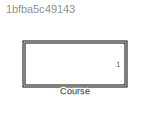
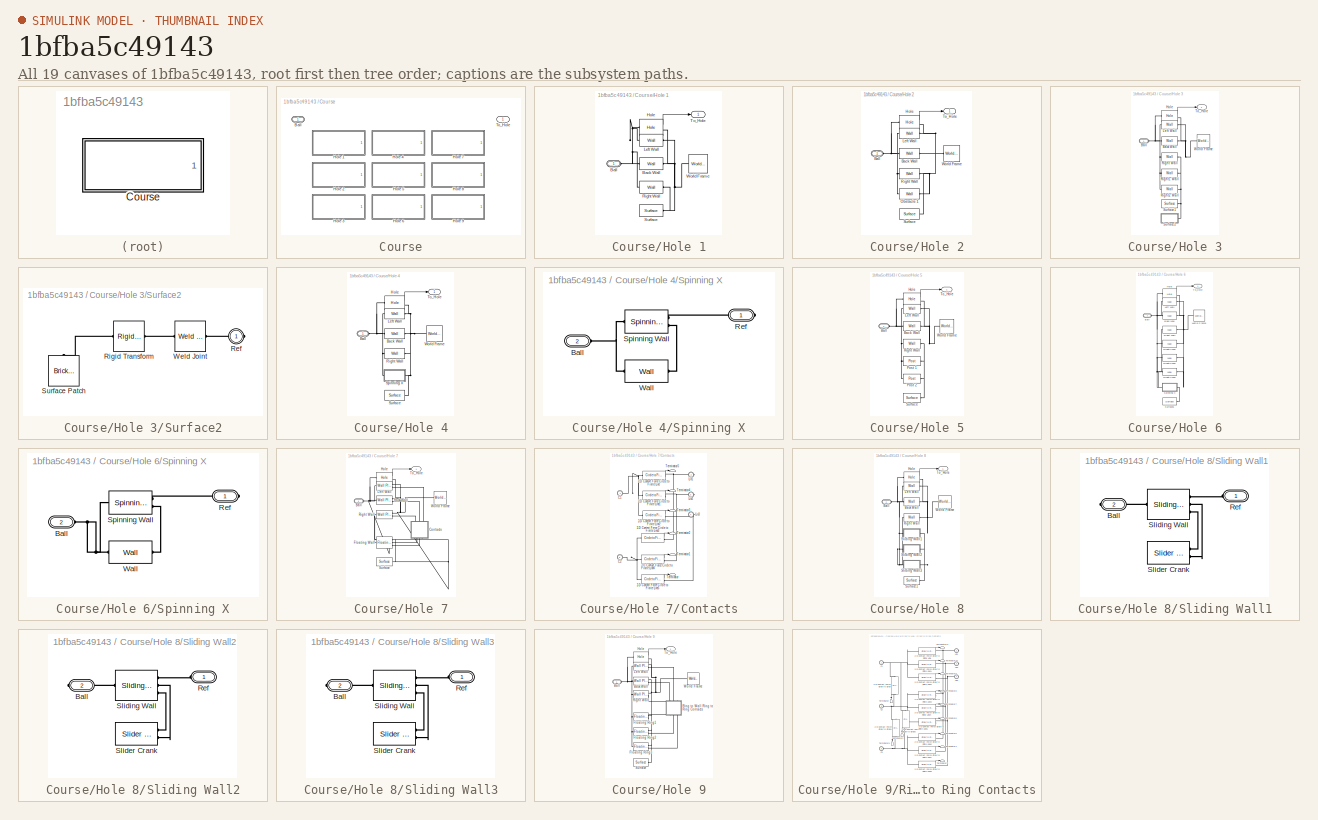
[diagram: thumbnail index - all 19 canvases of the model, root first then tree order]
MODEL slx_1bfba5c49143
KIND library
CONFIG AbsTol = auto
CONFIG EnableMultiTasking = on
CONFIG FixedStep = auto
CONFIG MaxStep = auto
CONFIG MinStep = auto
CONFIG RelTol = 1e-3
CONFIG SampleTimeConstraint = Unconstrained
CONFIG SolverName = ode45
CONFIG StartTime = 0.0
CONFIG StopTime = 10.0
BLOCK [SubSystem] Course
  LabelModeActiveChoice = Hole_1
  Ports = [0, 1, 0, 0, 0, 1]
  RequestExecContextInheritance = off
  Variant = on
  VariantControlMode = label
BLOCK [PMIOPort] Course/Ball
  Side = Left
BLOCK [SubSystem] Course/Hole 1
  Ports = [0, 1, 0, 0, 0, 1]
  RequestExecContextInheritance = off
  VariantControl = Hole_1
BLOCK [Reference] Course/Hole 1/Back Wall  REF=Golf_Components_Lib/Wall
  Ports = [0, 0, 0, 0, 0, 1, 1]
  SourceBlock = Golf_Components_Lib/Wall
  SourceType = Wall with Round Ends, 2D Contacts
BLOCK [PMIOPort] Course/Hole 1/Ball
  Side = Left
BLOCK [Reference] Course/Hole 1/Hole  REF=Golf_Components_Lib/Hole
  Ports = [0, 1, 0, 0, 0, 1, 1]
  SourceBlock = Golf_Components_Lib/Hole
  SourceType = Golf Course Hole, with Attractor Force
BLOCK [Reference] Course/Hole 1/Left Wall  REF=Golf_Components_Lib/Wall
  Ports = [0, 0, 0, 0, 0, 1, 1]
  SourceBlock = Golf_Components_Lib/Wall
  SourceType = Wall with Round Ends, 2D Contacts
BLOCK [Reference] Course/Hole 1/Right Wall  REF=Golf_Components_Lib/Wall
  Ports = [0, 0, 0, 0, 0, 1, 1]
  SourceBlock = Golf_Components_Lib/Wall
  SourceType = Wall with Round Ends, 2D Contacts
BLOCK [Reference] Course/Hole 1/Surface  REF=Golf_Components_Lib/Surface
  Ports = [0, 0, 0, 0, 0, 0, 1]
  SourceBlock = Golf_Components_Lib/Surface
  SourceType = Square Surface Patch for Golf Course
BLOCK [Outport] Course/Hole 1/To_Hole
  VectorParamsAs1DForOutWhenUnconnected = off
BLOCK [Reference] Course/Hole 1/World Frame  REF=sm_lib/Frames and
Transforms/World Frame
  Ports = [0, 0, 0, 0, 0, 0, 1]
  SourceBlock = sm_lib/Frames and\nTransforms/World Frame
  SourceProductBaseCode = MS
  SourceType = World Frame
BLOCK [SubSystem] Course/Hole 2
  Ports = [0, 1, 0, 0, 0, 1]
  RequestExecContextInheritance = off
  VariantControl = Hole_2
BLOCK [Reference] Course/Hole 2/Back Wall  REF=Golf_Components_Lib/Wall
  Ports = [0, 0, 0, 0, 0, 1, 1]
  SourceBlock = Golf_Components_Lib/Wall
  SourceType = Wall with Round Ends, 2D Contacts
BLOCK [PMIOPort] Course/Hole 2/Ball
  Side = Left
BLOCK [Reference] Course/Hole 2/Hole  REF=Golf_Components_Lib/Hole
  Ports = [0, 1, 0, 0, 0, 1, 1]
  SourceBlock = Golf_Components_Lib/Hole
  SourceType = Golf Course Hole, with Attractor Force
BLOCK [Reference] Course/Hole 2/Left Wall  REF=Golf_Components_Lib/Wall
  Ports = [0, 0, 0, 0, 0, 1, 1]
  SourceBlock = Golf_Components_Lib/Wall
  SourceType = Wall with Round Ends, 2D Contacts
BLOCK [Reference] Course/Hole 2/Obstacle 1  REF=Golf_Components_Lib/Wall
  Ports = [0, 0, 0, 0, 0, 1, 1]
  SourceBlock = Golf_Components_Lib/Wall
  SourceType = Wall with Round Ends, 2D Contacts
BLOCK [Reference] Course/Hole 2/Right Wall  REF=Golf_Components_Lib/Wall
  Ports = [0, 0, 0, 0, 0, 1, 1]
  SourceBlock = Golf_Components_Lib/Wall
  SourceType = Wall with Round Ends, 2D Contacts
BLOCK [Reference] Course/Hole 2/Surface  REF=Golf_Components_Lib/Surface
  Ports = [0, 0, 0, 0, 0, 0, 1]
  SourceBlock = Golf_Components_Lib/Surface
  SourceType = Square Surface Patch for Golf Course
BLOCK [Outport] Course/Hole 2/To_Hole
  VectorParamsAs1DForOutWhenUnconnected = off
BLOCK [Reference] Course/Hole 2/World Frame  REF=sm_lib/Frames and
Transforms/World Frame
  Ports = [0, 0, 0, 0, 0, 0, 1]
  SourceBlock = sm_lib/Frames and\nTransforms/World Frame
  SourceProductBaseCode = MS
  SourceType = World Frame
BLOCK [SubSystem] Course/Hole 3
  Ports = [0, 1, 0, 0, 0, 1]
  RequestExecContextInheritance = off
  VariantControl = Hole_3
BLOCK [Reference] Course/Hole 3/Back Wall  REF=Golf_Components_Lib/Wall
  Ports = [0, 0, 0, 0, 0, 1, 1]
  SourceBlock = Golf_Components_Lib/Wall
  SourceType = Wall with Round Ends, 2D Contacts
BLOCK [PMIOPort] Course/Hole 3/Ball
  Side = Left
BLOCK [Reference] Course/Hole 3/Hole  REF=Golf_Components_Lib/Hole
  Ports = [0, 1, 0, 0, 0, 1, 1]
  SourceBlock = Golf_Components_Lib/Hole
  SourceType = Golf Course Hole, with Attractor Force
BLOCK [Reference] Course/Hole 3/Left Wall  REF=Golf_Components_Lib/Wall
  Ports = [0, 0, 0, 0, 0, 1, 1]
  SourceBlock = Golf_Components_Lib/Wall
  SourceType = Wall with Round Ends, 2D Contacts
BLOCK [Reference] Course/Hole 3/Right Wall  REF=Golf_Components_Lib/Wall
  Ports = [0, 0, 0, 0, 0, 1, 1]
  SourceBlock = Golf_Components_Lib/Wall
  SourceType = Wall with Round Ends, 2D Contacts
BLOCK [Reference] Course/Hole 3/Right1 Wall  REF=Golf_Components_Lib/Wall
  Ports = [0, 0, 0, 0, 0, 1, 1]
  SourceBlock = Golf_Components_Lib/Wall
  SourceType = Wall with Round Ends, 2D Contacts
BLOCK [Reference] Course/Hole 3/Right2 Wall  REF=Golf_Components_Lib/Wall
  Ports = [0, 0, 0, 0, 0, 1, 1]
  SourceBlock = Golf_Components_Lib/Wall
  SourceType = Wall with Round Ends, 2D Contacts
BLOCK [Reference] Course/Hole 3/Surface1  REF=Golf_Components_Lib/Surface
  Ports = [0, 0, 0, 0, 0, 0, 1]
  SourceBlock = Golf_Components_Lib/Surface
  SourceType = Square Surface Patch for Golf Course
BLOCK [SubSystem] Course/Hole 3/Surface2
  Ports = [0, 0, 0, 0, 0, 0, 1]
  RequestExecContextInheritance = off
BLOCK [PMIOPort] Course/Hole 3/Surface2/Ref
  Side = Right
BLOCK [Reference] Course/Hole 3/Surface2/Rigid Transform  REF=sm_lib/Frames and
Transforms/Rigid
Transform
  Ports = [0, 0, 0, 0, 0, 1, 1]
  SourceBlock = sm_lib/Frames and\nTransforms/Rigid\nTransform
  SourceProductBaseCode = MS
  SourceType = Rigid\nTransform
BLOCK [Reference] Course/Hole 3/Surface2/Surface Patch  REF=sm_lib/Body Elements/Brick Solid
  NameLocation = right
  Ports = [0, 0, 0, 0, 0, 0, 1]
  SourceBlock = sm_lib/Body Elements/Brick Solid
  SourceProductBaseCode = MS
  SourceType = Brick Solid
BLOCK [Reference] Course/Hole 3/Surface2/Weld Joint  REF=sm_lib/Joints/Weld Joint
  Ports = [0, 0, 0, 0, 0, 1, 1]
  SourceBlock = sm_lib/Joints/Weld Joint
  SourceProductBaseCode = MS
  SourceType = Weld Joint
BLOCK [Outport] Course/Hole 3/To_Hole
  VectorParamsAs1DForOutWhenUnconnected = off
BLOCK [Reference] Course/Hole 3/World Frame  REF=sm_lib/Frames and
Transforms/World Frame
  Ports = [0, 0, 0, 0, 0, 0, 1]
  SourceBlock = sm_lib/Frames and\nTransforms/World Frame
  SourceProductBaseCode = MS
  SourceType = World Frame
BLOCK [SubSystem] Course/Hole 4
  Ports = [0, 1, 0, 0, 0, 1]
  RequestExecContextInheritance = off
  VariantControl = Hole_4
BLOCK [Reference] Course/Hole 4/Back Wall  REF=Golf_Components_Lib/Wall
  Ports = [0, 0, 0, 0, 0, 1, 1]
  SourceBlock = Golf_Components_Lib/Wall
  SourceType = Wall with Round Ends, 2D Contacts
BLOCK [PMIOPort] Course/Hole 4/Ball
  Side = Left
BLOCK [Reference] Course/Hole 4/Hole  REF=Golf_Components_Lib/Hole
  Ports = [0, 1, 0, 0, 0, 1, 1]
  SourceBlock = Golf_Components_Lib/Hole
  SourceType = Golf Course Hole, with Attractor Force
BLOCK [Reference] Course/Hole 4/Left Wall  REF=Golf_Components_Lib/Wall
  Ports = [0, 0, 0, 0, 0, 1, 1]
  SourceBlock = Golf_Components_Lib/Wall
  SourceType = Wall with Round Ends, 2D Contacts
BLOCK [Reference] Course/Hole 4/Right Wall  REF=Golf_Components_Lib/Wall
  Ports = [0, 0, 0, 0, 0, 1, 1]
  SourceBlock = Golf_Components_Lib/Wall
  SourceType = Wall with Round Ends, 2D Contacts
BLOCK [SubSystem] Course/Hole 4/Spinning X
  Ports = [0, 0, 0, 0, 0, 1, 1]
  RequestExecContextInheritance = off
BLOCK [PMIOPort] Course/Hole 4/Spinning X/Ball
  NameLocation = top
  Port = 2
  Side = Left
BLOCK [PMIOPort] Course/Hole 4/Spinning X/Ref
  NameLocation = top
  Side = Right
BLOCK [Reference] Course/Hole 4/Spinning X/Spinning Wall  REF=Golf_Components_Lib/Spinning Wall
  Ports = [0, 0, 0, 0, 0, 2, 1]
  SourceBlock = Golf_Components_Lib/Spinning Wall
  SourceType = Spinning Wall with Round Ends, 2D Contacts
BLOCK [Reference] Course/Hole 4/Spinning X/Wall  REF=Golf_Components_Lib/Wall
  Ports = [0, 0, 0, 0, 0, 1, 1]
  SourceBlock = Golf_Components_Lib/Wall
  SourceType = Wall with Round Ends, 2D Contacts
BLOCK [Reference] Course/Hole 4/Surface  REF=Golf_Components_Lib/Surface
  Ports = [0, 0, 0, 0, 0, 0, 1]
  SourceBlock = Golf_Components_Lib/Surface
  SourceType = Square Surface Patch for Golf Course
BLOCK [Outport] Course/Hole 4/To_Hole
  VectorParamsAs1DForOutWhenUnconnected = off
BLOCK [Reference] Course/Hole 4/World Frame  REF=sm_lib/Frames and
Transforms/World Frame
  Ports = [0, 0, 0, 0, 0, 0, 1]
  SourceBlock = sm_lib/Frames and\nTransforms/World Frame
  SourceProductBaseCode = MS
  SourceType = World Frame
BLOCK [SubSystem] Course/Hole 5
  Ports = [0, 1, 0, 0, 0, 1]
  RequestExecContextInheritance = off
  VariantControl = Hole_5
BLOCK [Reference] Course/Hole 5/Back Wall  REF=Golf_Components_Lib/Wall
  Ports = [0, 0, 0, 0, 0, 1, 1]
  SourceBlock = Golf_Components_Lib/Wall
  SourceType = Wall with Round Ends, 2D Contacts
BLOCK [PMIOPort] Course/Hole 5/Ball
  Side = Left
BLOCK [Reference] Course/Hole 5/Hole  REF=Golf_Components_Lib/Hole
  Ports = [0, 1, 0, 0, 0, 1, 1]
  SourceBlock = Golf_Components_Lib/Hole
  SourceType = Golf Course Hole, with Attractor Force
BLOCK [Reference] Course/Hole 5/Left Wall  REF=Golf_Components_Lib/Wall
  Ports = [0, 0, 0, 0, 0, 1, 1]
  SourceBlock = Golf_Components_Lib/Wall
  SourceType = Wall with Round Ends, 2D Contacts
BLOCK [Reference] Course/Hole 5/Post 1  REF=Golf_Components_Lib/Post
  Ports = [0, 0, 0, 0, 0, 1, 1]
  SourceBlock = Golf_Components_Lib/Post
  SourceType = Round Obstacle, 2D Contacts
BLOCK [Reference] Course/Hole 5/Post 2  REF=Golf_Components_Lib/Post
  Ports = [0, 0, 0, 0, 0, 1, 1]
  SourceBlock = Golf_Components_Lib/Post
  SourceType = Round Obstacle, 2D Contacts
BLOCK [Reference] Course/Hole 5/Right Wall  REF=Golf_Components_Lib/Wall
  Ports = [0, 0, 0, 0, 0, 1, 1]
  SourceBlock = Golf_Components_Lib/Wall
  SourceType = Wall with Round Ends, 2D Contacts
BLOCK [Reference] Course/Hole 5/Surface  REF=Golf_Components_Lib/Surface
  Ports = [0, 0, 0, 0, 0, 0, 1]
  SourceBlock = Golf_Components_Lib/Surface
  SourceType = Square Surface Patch for Golf Course
BLOCK [Outport] Course/Hole 5/To_Hole
  VectorParamsAs1DForOutWhenUnconnected = off
BLOCK [Reference] Course/Hole 5/World Frame  REF=sm_lib/Frames and
Transforms/World Frame
  Ports = [0, 0, 0, 0, 0, 0, 1]
  SourceBlock = sm_lib/Frames and\nTransforms/World Frame
  SourceProductBaseCode = MS
  SourceType = World Frame
BLOCK [SubSystem] Course/Hole 6
  Ports = [0, 1, 0, 0, 0, 1]
  RequestExecContextInheritance = off
  VariantControl = Hole_6
BLOCK [Reference] Course/Hole 6/Back Wall  REF=Golf_Components_Lib/Wall
  Ports = [0, 0, 0, 0, 0, 1, 1]
  SourceBlock = Golf_Components_Lib/Wall
  SourceType = Wall with Round Ends, 2D Contacts
BLOCK [PMIOPort] Course/Hole 6/Ball
  Side = Left
BLOCK [Reference] Course/Hole 6/Hole  REF=Golf_Components_Lib/Hole
  Ports = [0, 1, 0, 0, 0, 1, 1]
  SourceBlock = Golf_Components_Lib/Hole
  SourceType = Golf Course Hole, with Attractor Force
BLOCK [Reference] Course/Hole 6/Left Wall  REF=Golf_Components_Lib/Wall
  Ports = [0, 0, 0, 0, 0, 1, 1]
  SourceBlock = Golf_Components_Lib/Wall
  SourceType = Wall with Round Ends, 2D Contacts
BLOCK [Reference] Course/Hole 6/Right Wall  REF=Golf_Components_Lib/Wall
  Ports = [0, 0, 0, 0, 0, 1, 1]
  SourceBlock = Golf_Components_Lib/Wall
  SourceType = Wall with Round Ends, 2D Contacts
BLOCK [Reference] Course/Hole 6/Right2 Wall  REF=Golf_Components_Lib/Wall
  Ports = [0, 0, 0, 0, 0, 1, 1]
  SourceBlock = Golf_Components_Lib/Wall
  SourceType = Wall with Round Ends, 2D Contacts
BLOCK [Reference] Course/Hole 6/Right3 Wall  REF=Golf_Components_Lib/Wall
  Ports = [0, 0, 0, 0, 0, 1, 1]
  SourceBlock = Golf_Components_Lib/Wall
  SourceType = Wall with Round Ends, 2D Contacts
BLOCK [Reference] Course/Hole 6/Right4 Wall  REF=Golf_Components_Lib/Wall
  Ports = [0, 0, 0, 0, 0, 1, 1]
  SourceBlock = Golf_Components_Lib/Wall
  SourceType = Wall with Round Ends, 2D Contacts
BLOCK [SubSystem] Course/Hole 6/Spinning X
  Ports = [0, 0, 0, 0, 0, 1, 1]
  RequestExecContextInheritance = off
BLOCK [PMIOPort] Course/Hole 6/Spinning X/Ball
  NameLocation = top
  Port = 2
  Side = Left
BLOCK [PMIOPort] Course/Hole 6/Spinning X/Ref
  NameLocation = top
  Side = Right
BLOCK [Reference] Course/Hole 6/Spinning X/Spinning Wall  REF=Golf_Components_Lib/Spinning Wall
  Ports = [0, 0, 0, 0, 0, 2, 1]
  SourceBlock = Golf_Components_Lib/Spinning Wall
  SourceType = Spinning Wall with Round Ends, 2D Contacts
BLOCK [Reference] Course/Hole 6/Spinning X/Wall  REF=Golf_Components_Lib/Wall
  Ports = [0, 0, 0, 0, 0, 1, 1]
  SourceBlock = Golf_Components_Lib/Wall
  SourceType = Wall with Round Ends, 2D Contacts
BLOCK [Reference] Course/Hole 6/Surface1  REF=Golf_Components_Lib/Surface
  Ports = [0, 0, 0, 0, 0, 0, 1]
  SourceBlock = Golf_Components_Lib/Surface
  SourceType = Square Surface Patch for Golf Course
BLOCK [Outport] Course/Hole 6/To_Hole
  VectorParamsAs1DForOutWhenUnconnected = off
BLOCK [Reference] Course/Hole 6/World Frame  REF=sm_lib/Frames and
Transforms/World Frame
  Ports = [0, 0, 0, 0, 0, 0, 1]
  SourceBlock = sm_lib/Frames and\nTransforms/World Frame
  SourceProductBaseCode = MS
  SourceType = World Frame
BLOCK [SubSystem] Course/Hole 7
  Ports = [0, 1, 0, 0, 0, 1]
  RequestExecContextInheritance = off
  VariantControl = Hole_7
BLOCK [Reference] Course/Hole 7/Back Wall  REF=Golf_Components_Lib/Wall Plus
  Ports = [0, 0, 0, 0, 0, 2, 1]
  SourceBlock = Golf_Components_Lib/Wall Plus
  SourceType = Wall with Round Ends, 2D Contacts, Port at CG
BLOCK [PMIOPort] Course/Hole 7/Ball
  Side = Left
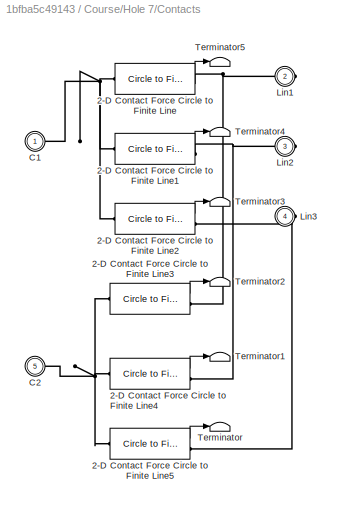
BLOCK [SubSystem] Course/Hole 7/Contacts
  NameLocation = right
  Ports = [0, 0, 0, 0, 0, 2, 3]
  RequestExecContextInheritance = off
BLOCK [Reference] Course/Hole 7/Contacts/2-D Contact Force Circle to Finite Line  REF=Contact_Forces_Lib/2D/Circle to Finite Line Force
  NameLocation = top
  Ports = [0, 1, 0, 0, 0, 1, 1]
  SourceBlock = Contact_Forces_Lib/2D/Circle to Finite Line Force
  SourceProductName = Simscape Multibody Contact Forces Library
  SourceType = Circle on Finite Line Force
BLOCK [Reference] Course/Hole 7/Contacts/2-D Contact Force Circle to Finite Line1  REF=Contact_Forces_Lib/2D/Circle to Finite Line Force
  NameLocation = top
  Ports = [0, 1, 0, 0, 0, 1, 1]
  SourceBlock = Contact_Forces_Lib/2D/Circle to Finite Line Force
  SourceProductName = Simscape Multibody Contact Forces Library
  SourceType = Circle on Finite Line Force
BLOCK [Reference] Course/Hole 7/Contacts/2-D Contact Force Circle to Finite Line2  REF=Contact_Forces_Lib/2D/Circle to Finite Line Force
  NameLocation = top
  Ports = [0, 1, 0, 0, 0, 1, 1]
  SourceBlock = Contact_Forces_Lib/2D/Circle to Finite Line Force
  SourceProductName = Simscape Multibody Contact Forces Library
  SourceType = Circle on Finite Line Force
BLOCK [Reference] Course/Hole 7/Contacts/2-D Contact Force Circle to Finite Line3  REF=Contact_Forces_Lib/2D/Circle to Finite Line Force
  NameLocation = top
  Ports = [0, 1, 0, 0, 0, 1, 1]
  SourceBlock = Contact_Forces_Lib/2D/Circle to Finite Line Force
  SourceProductName = Simscape Multibody Contact Forces Library
  SourceType = Circle on Finite Line Force
BLOCK [Reference] Course/Hole 7/Contacts/2-D Contact Force Circle to Finite Line4  REF=Contact_Forces_Lib/2D/Circle to Finite Line Force
  NameLocation = top
  Ports = [0, 1, 0, 0, 0, 1, 1]
  SourceBlock = Contact_Forces_Lib/2D/Circle to Finite Line Force
  SourceProductName = Simscape Multibody Contact Forces Library
  SourceType = Circle on Finite Line Force
BLOCK [Reference] Course/Hole 7/Contacts/2-D Contact Force Circle to Finite Line5  REF=Contact_Forces_Lib/2D/Circle to Finite Line Force
  NameLocation = top
  Ports = [0, 1, 0, 0, 0, 1, 1]
  SourceBlock = Contact_Forces_Lib/2D/Circle to Finite Line Force
  SourceProductName = Simscape Multibody Contact Forces Library
  SourceType = Circle on Finite Line Force
BLOCK [PMIOPort] Course/Hole 7/Contacts/C1
  Side = Left
BLOCK [PMIOPort] Course/Hole 7/Contacts/C2
  Port = 5
  Side = Left
BLOCK [PMIOPort] Course/Hole 7/Contacts/Lin1
  NameLocation = top
  Port = 2
  Side = Right
BLOCK [PMIOPort] Course/Hole 7/Contacts/Lin2
  NameLocation = top
  Port = 3
  Side = Right
BLOCK [PMIOPort] Course/Hole 7/Contacts/Lin3
  NameLocation = top
  Port = 4
  Side = Right
BLOCK [Terminator] Course/Hole 7/Contacts/Terminator
BLOCK [Terminator] Course/Hole 7/Contacts/Terminator1
BLOCK [Terminator] Course/Hole 7/Contacts/Terminator2
BLOCK [Terminator] Course/Hole 7/Contacts/Terminator3
BLOCK [Terminator] Course/Hole 7/Contacts/Terminator4
BLOCK [Terminator] Course/Hole 7/Contacts/Terminator5
BLOCK [Reference] Course/Hole 7/Floating Wall  REF=Golf_Components_Lib/Floating Wall
  Ports = [0, 0, 0, 0, 0, 3, 1]
  SourceBlock = Golf_Components_Lib/Floating Wall
  SourceType = Floating Wall with Round Ends, 2D Contacts
BLOCK [Reference] Course/Hole 7/Hole  REF=Golf_Components_Lib/Hole
  Ports = [0, 1, 0, 0, 0, 1, 1]
  SourceBlock = Golf_Components_Lib/Hole
  SourceType = Golf Course Hole, with Attractor Force
BLOCK [Reference] Course/Hole 7/Left Wall  REF=Golf_Components_Lib/Wall Plus
  Ports = [0, 0, 0, 0, 0, 2, 1]
  SourceBlock = Golf_Components_Lib/Wall Plus
  SourceType = Wall with Round Ends, 2D Contacts, Port at CG
BLOCK [Reference] Course/Hole 7/Right Wall  REF=Golf_Components_Lib/Wall Plus
  Ports = [0, 0, 0, 0, 0, 2, 1]
  SourceBlock = Golf_Components_Lib/Wall Plus
  SourceType = Wall with Round Ends, 2D Contacts, Port at CG
BLOCK [Reference] Course/Hole 7/Surface  REF=Golf_Components_Lib/Surface
  Ports = [0, 0, 0, 0, 0, 0, 1]
  SourceBlock = Golf_Components_Lib/Surface
  SourceType = Square Surface Patch for Golf Course
BLOCK [Outport] Course/Hole 7/To_Hole
  VectorParamsAs1DForOutWhenUnconnected = off
BLOCK [Reference] Course/Hole 7/World Frame  REF=sm_lib/Frames and
Transforms/World Frame
  Ports = [0, 0, 0, 0, 0, 0, 1]
  SourceBlock = sm_lib/Frames and\nTransforms/World Frame
  SourceProductBaseCode = MS
  SourceType = World Frame
BLOCK [SubSystem] Course/Hole 8
  Ports = [0, 1, 0, 0, 0, 1]
  RequestExecContextInheritance = off
  VariantControl = Hole_8
BLOCK [Reference] Course/Hole 8/Back Wall  REF=Golf_Components_Lib/Wall
  Ports = [0, 0, 0, 0, 0, 1, 1]
  SourceBlock = Golf_Components_Lib/Wall
  SourceType = Wall with Round Ends, 2D Contacts
BLOCK [PMIOPort] Course/Hole 8/Ball
  Side = Left
BLOCK [Reference] Course/Hole 8/Hole  REF=Golf_Components_Lib/Hole
  Ports = [0, 1, 0, 0, 0, 1, 1]
  SourceBlock = Golf_Components_Lib/Hole
  SourceType = Golf Course Hole, with Attractor Force
BLOCK [Reference] Course/Hole 8/Left Wall  REF=Golf_Components_Lib/Wall
  Ports = [0, 0, 0, 0, 0, 1, 1]
  SourceBlock = Golf_Components_Lib/Wall
  SourceType = Wall with Round Ends, 2D Contacts
BLOCK [Reference] Course/Hole 8/Right Wall  REF=Golf_Components_Lib/Wall
  Ports = [0, 0, 0, 0, 0, 1, 1]
  SourceBlock = Golf_Components_Lib/Wall
  SourceType = Wall with Round Ends, 2D Contacts
BLOCK [SubSystem] Course/Hole 8/Sliding Wall1
  Ports = [0, 0, 0, 0, 0, 1, 1]
  RequestExecContextInheritance = off
BLOCK [PMIOPort] Course/Hole 8/Sliding Wall1/Ball
  Port = 2
  Side = Right
BLOCK [PMIOPort] Course/Hole 8/Sliding Wall1/Ref
  Side = Left
BLOCK [Reference] Course/Hole 8/Sliding Wall1/Slider Crank  REF=Golf_Components_Lib/Slider Crank
  Ports = [0, 0, 0, 0, 0, 0, 2]
  SourceBlock = Golf_Components_Lib/Slider Crank
  SourceType = Slider Crank
BLOCK [Reference] Course/Hole 8/Sliding Wall1/Sliding Wall  REF=Golf_Components_Lib/Sliding Wall
  Ports = [0, 0, 0, 0, 0, 3, 1]
  SourceBlock = Golf_Components_Lib/Sliding Wall
  SourceType = Sliding Wall with Round Ends, 2D Contacts
BLOCK [SubSystem] Course/Hole 8/Sliding Wall2
  Ports = [0, 0, 0, 0, 0, 1, 1]
  RequestExecContextInheritance = off
BLOCK [PMIOPort] Course/Hole 8/Sliding Wall2/Ball
  Port = 2
  Side = Right
BLOCK [PMIOPort] Course/Hole 8/Sliding Wall2/Ref
  Side = Left
BLOCK [Reference] Course/Hole 8/Sliding Wall2/Slider Crank  REF=Golf_Components_Lib/Slider Crank
  Ports = [0, 0, 0, 0, 0, 0, 2]
  SourceBlock = Golf_Components_Lib/Slider Crank
  SourceType = Slider Crank
BLOCK [Reference] Course/Hole 8/Sliding Wall2/Sliding Wall  REF=Golf_Components_Lib/Sliding Wall
  Ports = [0, 0, 0, 0, 0, 3, 1]
  SourceBlock = Golf_Components_Lib/Sliding Wall
  SourceType = Sliding Wall with Round Ends, 2D Contacts
BLOCK [SubSystem] Course/Hole 8/Sliding Wall3
  Ports = [0, 0, 0, 0, 0, 1, 1]
  RequestExecContextInheritance = off
BLOCK [PMIOPort] Course/Hole 8/Sliding Wall3/Ball
  Port = 2
  Side = Right
BLOCK [PMIOPort] Course/Hole 8/Sliding Wall3/Ref
  Side = Left
BLOCK [Reference] Course/Hole 8/Sliding Wall3/Slider Crank  REF=Golf_Components_Lib/Slider Crank
  Ports = [0, 0, 0, 0, 0, 0, 2]
  SourceBlock = Golf_Components_Lib/Slider Crank
  SourceType = Slider Crank
BLOCK [Reference] Course/Hole 8/Sliding Wall3/Sliding Wall  REF=Golf_Components_Lib/Sliding Wall
  Ports = [0, 0, 0, 0, 0, 3, 1]
  SourceBlock = Golf_Components_Lib/Sliding Wall
  SourceType = Sliding Wall with Round Ends, 2D Contacts
BLOCK [Reference] Course/Hole 8/Surface1  REF=Golf_Components_Lib/Surface
  Ports = [0, 0, 0, 0, 0, 0, 1]
  SourceBlock = Golf_Components_Lib/Surface
  SourceType = Square Surface Patch for Golf Course
BLOCK [Outport] Course/Hole 8/To_Hole
  VectorParamsAs1DForOutWhenUnconnected = off
BLOCK [Reference] Course/Hole 8/World Frame  REF=sm_lib/Frames and
Transforms/World Frame
  Ports = [0, 0, 0, 0, 0, 0, 1]
  SourceBlock = sm_lib/Frames and\nTransforms/World Frame
  SourceProductBaseCode = MS
  SourceType = World Frame
BLOCK [SubSystem] Course/Hole 9
  Ports = [0, 1, 0, 0, 0, 1]
  RequestExecContextInheritance = off
  VariantControl = Hole_9
BLOCK [Reference] Course/Hole 9/Back Wall  REF=Golf_Components_Lib/Wall Plus
  Ports = [0, 0, 0, 0, 0, 2, 1]
  SourceBlock = Golf_Components_Lib/Wall Plus
  SourceType = Wall with Round Ends, 2D Contacts, Port at CG
BLOCK [PMIOPort] Course/Hole 9/Ball
  Side = Left
BLOCK [Reference] Course/Hole 9/Floating Ring1  REF=Golf_Components_Lib/Floating Ring
  Ports = [0, 0, 0, 0, 0, 2, 1]
  SourceBlock = Golf_Components_Lib/Floating Ring
  SourceType = Floating Ring, 2D Contacts
BLOCK [Reference] Course/Hole 9/Floating Ring2  REF=Golf_Components_Lib/Floating Ring
  Ports = [0, 0, 0, 0, 0, 2, 1]
  SourceBlock = Golf_Components_Lib/Floating Ring
  SourceType = Floating Ring, 2D Contacts
BLOCK [Reference] Course/Hole 9/Floating Ring3  REF=Golf_Components_Lib/Floating Ring
  Ports = [0, 0, 0, 0, 0, 2, 1]
  SourceBlock = Golf_Components_Lib/Floating Ring
  SourceType = Floating Ring, 2D Contacts
BLOCK [Reference] Course/Hole 9/Hole  REF=Golf_Components_Lib/Hole
  Ports = [0, 1, 0, 0, 0, 1, 1]
  SourceBlock = Golf_Components_Lib/Hole
  SourceType = Golf Course Hole, with Attractor Force
BLOCK [Reference] Course/Hole 9/Left Wall  REF=Golf_Components_Lib/Wall Plus
  Ports = [0, 0, 0, 0, 0, 2, 1]
  SourceBlock = Golf_Components_Lib/Wall Plus
  SourceType = Wall with Round Ends, 2D Contacts, Port at CG
BLOCK [Reference] Course/Hole 9/Right Wall  REF=Golf_Components_Lib/Wall Plus
  Ports = [0, 0, 0, 0, 0, 2, 1]
  SourceBlock = Golf_Components_Lib/Wall Plus
  SourceType = Wall with Round Ends, 2D Contacts, Port at CG
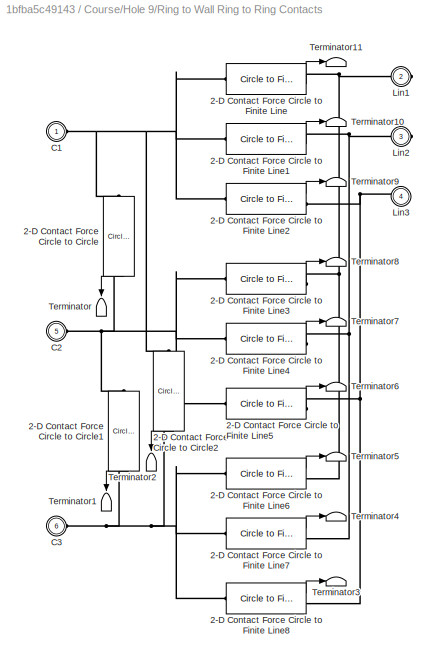
BLOCK [SubSystem] Course/Hole 9/Ring to Wall Ring to Ring Contacts
  NameLocation = right
  Ports = [0, 0, 0, 0, 0, 3, 3]
  RequestExecContextInheritance = off
BLOCK [Reference] Course/Hole 9/Ring to Wall Ring to Ring Contacts/2-D Contact Force Circle to Circle  REF=Contact_Forces_Lib/2D/Circle to Circle Force
  NameLocation = left
  Ports = [0, 1, 0, 0, 0, 1, 1]
  SourceBlock = Contact_Forces_Lib/2D/Circle to Circle Force
  SourceProductName = Simscape Multibody Contact Forces Library
  SourceType = Circle to Circle Force
BLOCK [Reference] Course/Hole 9/Ring to Wall Ring to Ring Contacts/2-D Contact Force Circle to Circle1  REF=Contact_Forces_Lib/2D/Circle to Circle Force
  NameLocation = left
  Ports = [0, 1, 0, 0, 0, 1, 1]
  SourceBlock = Contact_Forces_Lib/2D/Circle to Circle Force
  SourceProductName = Simscape Multibody Contact Forces Library
  SourceType = Circle to Circle Force
BLOCK [Reference] Course/Hole 9/Ring to Wall Ring to Ring Contacts/2-D Contact Force Circle to Circle2  REF=Contact_Forces_Lib/2D/Circle to Circle Force
  NameLocation = left
  Ports = [0, 1, 0, 0, 0, 1, 1]
  SourceBlock = Contact_Forces_Lib/2D/Circle to Circle Force
  SourceProductName = Simscape Multibody Contact Forces Library
  SourceType = Circle to Circle Force
BLOCK [Reference] Course/Hole 9/Ring to Wall Ring to Ring Contacts/2-D Contact Force Circle to Finite Line  REF=Contact_Forces_Lib/2D/Circle to Finite Line Force
  NameLocation = top
  Ports = [0, 1, 0, 0, 0, 1, 1]
  SourceBlock = Contact_Forces_Lib/2D/Circle to Finite Line Force
  SourceProductName = Simscape Multibody Contact Forces Library
  SourceType = Circle on Finite Line Force
BLOCK [Reference] Course/Hole 9/Ring to Wall Ring to Ring Contacts/2-D Contact Force Circle to Finite Line1  REF=Contact_Forces_Lib/2D/Circle to Finite Line Force
  NameLocation = top
  Ports = [0, 1, 0, 0, 0, 1, 1]
  SourceBlock = Contact_Forces_Lib/2D/Circle to Finite Line Force
  SourceProductName = Simscape Multibody Contact Forces Library
  SourceType = Circle on Finite Line Force
BLOCK [Reference] Course/Hole 9/Ring to Wall Ring to Ring Contacts/2-D Contact Force Circle to Finite Line2  REF=Contact_Forces_Lib/2D/Circle to Finite Line Force
  NameLocation = top
  Ports = [0, 1, 0, 0, 0, 1, 1]
  SourceBlock = Contact_Forces_Lib/2D/Circle to Finite Line Force
  SourceProductName = Simscape Multibody Contact Forces Library
  SourceType = Circle on Finite Line Force
BLOCK [Reference] Course/Hole 9/Ring to Wall Ring to Ring Contacts/2-D Contact Force Circle to Finite Line3  REF=Contact_Forces_Lib/2D/Circle to Finite Line Force
  NameLocation = top
  Ports = [0, 1, 0, 0, 0, 1, 1]
  SourceBlock = Contact_Forces_Lib/2D/Circle to Finite Line Force
  SourceProductName = Simscape Multibody Contact Forces Library
  SourceType = Circle on Finite Line Force
BLOCK [Reference] Course/Hole 9/Ring to Wall Ring to Ring Contacts/2-D Contact Force Circle to Finite Line4  REF=Contact_Forces_Lib/2D/Circle to Finite Line Force
  NameLocation = top
  Ports = [0, 1, 0, 0, 0, 1, 1]
  SourceBlock = Contact_Forces_Lib/2D/Circle to Finite Line Force
  SourceProductName = Simscape Multibody Contact Forces Library
  SourceType = Circle on Finite Line Force
BLOCK [Reference] Course/Hole 9/Ring to Wall Ring to Ring Contacts/2-D Contact Force Circle to Finite Line5  REF=Contact_Forces_Lib/2D/Circle to Finite Line Force
  NameLocation = top
  Ports = [0, 1, 0, 0, 0, 1, 1]
  SourceBlock = Contact_Forces_Lib/2D/Circle to Finite Line Force
  SourceProductName = Simscape Multibody Contact Forces Library
  SourceType = Circle on Finite Line Force
BLOCK [Reference] Course/Hole 9/Ring to Wall Ring to Ring Contacts/2-D Contact Force Circle to Finite Line6  REF=Contact_Forces_Lib/2D/Circle to Finite Line Force
  NameLocation = top
  Ports = [0, 1, 0, 0, 0, 1, 1]
  SourceBlock = Contact_Forces_Lib/2D/Circle to Finite Line Force
  SourceProductName = Simscape Multibody Contact Forces Library
  SourceType = Circle on Finite Line Force
BLOCK [Reference] Course/Hole 9/Ring to Wall Ring to Ring Contacts/2-D Contact Force Circle to Finite Line7  REF=Contact_Forces_Lib/2D/Circle to Finite Line Force
  NameLocation = top
  Ports = [0, 1, 0, 0, 0, 1, 1]
  SourceBlock = Contact_Forces_Lib/2D/Circle to Finite Line Force
  SourceProductName = Simscape Multibody Contact Forces Library
  SourceType = Circle on Finite Line Force
BLOCK [Reference] Course/Hole 9/Ring to Wall Ring to Ring Contacts/2-D Contact Force Circle to Finite Line8  REF=Contact_Forces_Lib/2D/Circle to Finite Line Force
  NameLocation = top
  Ports = [0, 1, 0, 0, 0, 1, 1]
  SourceBlock = Contact_Forces_Lib/2D/Circle to Finite Line Force
  SourceProductName = Simscape Multibody Contact Forces Library
  SourceType = Circle on Finite Line Force
BLOCK [PMIOPort] Course/Hole 9/Ring to Wall Ring to Ring Contacts/C1
  Side = Left
BLOCK [PMIOPort] Course/Hole 9/Ring to Wall Ring to Ring Contacts/C2
  Port = 5
  Side = Left
BLOCK [PMIOPort] Course/Hole 9/Ring to Wall Ring to Ring Contacts/C3
  Port = 6
  Side = Left
BLOCK [PMIOPort] Course/Hole 9/Ring to Wall Ring to Ring Contacts/Lin1
  NameLocation = top
  Port = 2
  Side = Right
BLOCK [PMIOPort] Course/Hole 9/Ring to Wall Ring to Ring Contacts/Lin2
  NameLocation = top
  Port = 3
  Side = Right
BLOCK [PMIOPort] Course/Hole 9/Ring to Wall Ring to Ring Contacts/Lin3
  NameLocation = top
  Port = 4
  Side = Right
BLOCK [Terminator] Course/Hole 9/Ring to Wall Ring to Ring Contacts/Terminator
  NameLocation = left
BLOCK [Terminator] Course/Hole 9/Ring to Wall Ring to Ring Contacts/Terminator1
  NameLocation = left
BLOCK [Terminator] Course/Hole 9/Ring to Wall Ring to Ring Contacts/Terminator10
BLOCK [Terminator] Course/Hole 9/Ring to Wall Ring to Ring Contacts/Terminator11
BLOCK [Terminator] Course/Hole 9/Ring to Wall Ring to Ring Contacts/Terminator2
  NameLocation = left
BLOCK [Terminator] Course/Hole 9/Ring to Wall Ring to Ring Contacts/Terminator3
BLOCK [Terminator] Course/Hole 9/Ring to Wall Ring to Ring Contacts/Terminator4
BLOCK [Terminator] Course/Hole 9/Ring to Wall Ring to Ring Contacts/Terminator5
BLOCK [Terminator] Course/Hole 9/Ring to Wall Ring to Ring Contacts/Terminator6
BLOCK [Terminator] Course/Hole 9/Ring to Wall Ring to Ring Contacts/Terminator7
BLOCK [Terminator] Course/Hole 9/Ring to Wall Ring to Ring Contacts/Terminator8
BLOCK [Terminator] Course/Hole 9/Ring to Wall Ring to Ring Contacts/Terminator9
BLOCK [Reference] Course/Hole 9/Surface  REF=Golf_Components_Lib/Surface
  Ports = [0, 0, 0, 0, 0, 0, 1]
  SourceBlock = Golf_Components_Lib/Surface
  SourceType = Square Surface Patch for Golf Course
BLOCK [Outport] Course/Hole 9/To_Hole
  VectorParamsAs1DForOutWhenUnconnected = off
BLOCK [Reference] Course/Hole 9/World Frame  REF=sm_lib/Frames and
Transforms/World Frame
  Ports = [0, 0, 0, 0, 0, 0, 1]
  SourceBlock = sm_lib/Frames and\nTransforms/World Frame
  SourceProductBaseCode = MS
  SourceType = World Frame
BLOCK [Outport] Course/To_Hole
  VectorParamsAs1DForOutWhenUnconnected = off
LINE Course/Hole 1/Hole:1 -> Course/Hole 1/To_Hole:1
LINE Course/Hole 2/Hole:1 -> Course/Hole 2/To_Hole:1
LINE Course/Hole 3/Hole:1 -> Course/Hole 3/To_Hole:1
LINE Course/Hole 4/Hole:1 -> Course/Hole 4/To_Hole:1
LINE Course/Hole 5/Hole:1 -> Course/Hole 5/To_Hole:1
LINE Course/Hole 6/Hole:1 -> Course/Hole 6/To_Hole:1
LINE Course/Hole 7/Contacts/2-D Contact Force Circle to Finite Line1:1 -> Course/Hole 7/Contacts/Terminator4:1
LINE Course/Hole 7/Contacts/2-D Contact Force Circle to Finite Line2:1 -> Course/Hole 7/Contacts/Terminator3:1
LINE Course/Hole 7/Contacts/2-D Contact Force Circle to Finite Line3:1 -> Course/Hole 7/Contacts/Terminator2:1
LINE Course/Hole 7/Contacts/2-D Contact Force Circle to Finite Line4:1 -> Course/Hole 7/Contacts/Terminator1:1
LINE Course/Hole 7/Contacts/2-D Contact Force Circle to Finite Line5:1 -> Course/Hole 7/Contacts/Terminator:1
LINE Course/Hole 7/Contacts/2-D Contact Force Circle to Finite Line:1 -> Course/Hole 7/Contacts/Terminator5:1
LINE Course/Hole 7/Hole:1 -> Course/Hole 7/To_Hole:1
LINE Course/Hole 8/Hole:1 -> Course/Hole 8/To_Hole:1
LINE Course/Hole 9/Hole:1 -> Course/Hole 9/To_Hole:1
LINE Course/Hole 9/Ring to Wall Ring to Ring Contacts/2-D Contact Force Circle to Circle1:1 -> Course/Hole 9/Ring to Wall Ring to Ring Contacts/Terminator1:1
LINE Course/Hole 9/Ring to Wall Ring to Ring Contacts/2-D Contact Force Circle to Circle2:1 -> Course/Hole 9/Ring to Wall Ring to Ring Contacts/Terminator2:1
LINE Course/Hole 9/Ring to Wall Ring to Ring Contacts/2-D Contact Force Circle to Circle:1 -> Course/Hole 9/Ring to Wall Ring to Ring Contacts/Terminator:1
LINE Course/Hole 9/Ring to Wall Ring to Ring Contacts/2-D Contact Force Circle to Finite Line1:1 -> Course/Hole 9/Ring to Wall Ring to Ring Contacts/Terminator10:1
LINE Course/Hole 9/Ring to Wall Ring to Ring Contacts/2-D Contact Force Circle to Finite Line2:1 -> Course/Hole 9/Ring to Wall Ring to Ring Contacts/Terminator9:1
LINE Course/Hole 9/Ring to Wall Ring to Ring Contacts/2-D Contact Force Circle to Finite Line3:1 -> Course/Hole 9/Ring to Wall Ring to Ring Contacts/Terminator8:1
LINE Course/Hole 9/Ring to Wall Ring to Ring Contacts/2-D Contact Force Circle to Finite Line4:1 -> Course/Hole 9/Ring to Wall Ring to Ring Contacts/Terminator7:1
LINE Course/Hole 9/Ring to Wall Ring to Ring Contacts/2-D Contact Force Circle to Finite Line5:1 -> Course/Hole 9/Ring to Wall Ring to Ring Contacts/Terminator6:1
LINE Course/Hole 9/Ring to Wall Ring to Ring Contacts/2-D Contact Force Circle to Finite Line6:1 -> Course/Hole 9/Ring to Wall Ring to Ring Contacts/Terminator5:1
LINE Course/Hole 9/Ring to Wall Ring to Ring Contacts/2-D Contact Force Circle to Finite Line7:1 -> Course/Hole 9/Ring to Wall Ring to Ring Contacts/Terminator4:1
LINE Course/Hole 9/Ring to Wall Ring to Ring Contacts/2-D Contact Force Circle to Finite Line8:1 -> Course/Hole 9/Ring to Wall Ring to Ring Contacts/Terminator3:1
LINE Course/Hole 9/Ring to Wall Ring to Ring Contacts/2-D Contact Force Circle to Finite Line:1 -> Course/Hole 9/Ring to Wall Ring to Ring Contacts/Terminator11:1
PNET net1: Course/Hole 1/Back Wall:LConn1 -- Course/Hole 1/Hole:RConn1 -- Course/Hole 1/Left Wall:LConn1 -- Course/Hole 1/Right Wall:LConn1 -- Course/Hole 1/Surface:RConn1 -- Course/Hole 1/World Frame:RConn1
PNET net2: Course/Hole 1/Back Wall:RConn1 -- Course/Hole 1/Ball:RConn1 -- Course/Hole 1/Hole:LConn1 -- Course/Hole 1/Left Wall:RConn1 -- Course/Hole 1/Right Wall:RConn1
PNET net3: Course/Hole 2/Back Wall:LConn1 -- Course/Hole 2/Hole:RConn1 -- Course/Hole 2/Left Wall:LConn1 -- Course/Hole 2/Obstacle 1:LConn1 -- Course/Hole 2/Right Wall:LConn1 -- Course/Hole 2/Surface:RConn1 -- Course/Hole 2/World Frame:RConn1
PNET net4: Course/Hole 2/Back Wall:RConn1 -- Course/Hole 2/Ball:RConn1 -- Course/Hole 2/Hole:LConn1 -- Course/Hole 2/Left Wall:RConn1 -- Course/Hole 2/Obstacle 1:RConn1 -- Course/Hole 2/Right Wall:RConn1
PNET net5: Course/Hole 3/Back Wall:LConn1 -- Course/Hole 3/Hole:RConn1 -- Course/Hole 3/Left Wall:LConn1 -- Course/Hole 3/Right Wall:LConn1 -- Course/Hole 3/Right1 Wall:LConn1 -- Course/Hole 3/Right2 Wall:LConn1 -- Course/Hole 3/Surface1:RConn1 -- Course/Hole 3/Surface2:RConn1 -- Course/Hole 3/World Frame:RConn1
PNET net6: Course/Hole 3/Back Wall:RConn1 -- Course/Hole 3/Ball:RConn1 -- Course/Hole 3/Hole:LConn1 -- Course/Hole 3/Left Wall:RConn1 -- Course/Hole 3/Right Wall:RConn1 -- Course/Hole 3/Right1 Wall:RConn1 -- Course/Hole 3/Right2 Wall:RConn1
PLINE Course/Hole 3/Surface2/Ref:RConn1 -- Course/Hole 3/Surface2/Weld Joint:LConn1
PLINE Course/Hole 3/Surface2/Rigid Transform:LConn1 -- Course/Hole 3/Surface2/Weld Joint:RConn1
PLINE Course/Hole 3/Surface2/Rigid Transform:RConn1 -- Course/Hole 3/Surface2/Surface Patch:RConn1
PNET net7: Course/Hole 4/Back Wall:LConn1 -- Course/Hole 4/Hole:RConn1 -- Course/Hole 4/Left Wall:LConn1 -- Course/Hole 4/Right Wall:LConn1 -- Course/Hole 4/Spinning X:RConn1 -- Course/Hole 4/Surface:RConn1 -- Course/Hole 4/World Frame:RConn1
PNET net8: Course/Hole 4/Back Wall:RConn1 -- Course/Hole 4/Ball:RConn1 -- Course/Hole 4/Hole:LConn1 -- Course/Hole 4/Left Wall:RConn1 -- Course/Hole 4/Right Wall:RConn1 -- Course/Hole 4/Spinning X:LConn1
PNET net9: Course/Hole 4/Spinning X/Ball:RConn1 -- Course/Hole 4/Spinning X/Spinning Wall:RConn1 -- Course/Hole 4/Spinning X/Wall:RConn1
PLINE Course/Hole 4/Spinning X/Ref:RConn1 -- Course/Hole 4/Spinning X/Spinning Wall:LConn1
PLINE Course/Hole 4/Spinning X/Spinning Wall:LConn2 -- Course/Hole 4/Spinning X/Wall:LConn1
PNET net10: Course/Hole 5/Back Wall:LConn1 -- Course/Hole 5/Hole:RConn1 -- Course/Hole 5/Left Wall:LConn1 -- Course/Hole 5/Post 1:LConn1 -- Course/Hole 5/Post 2:LConn1 -- Course/Hole 5/Right Wall:LConn1 -- Course/Hole 5/Surface:RConn1 -- Course/Hole 5/World Frame:RConn1
PNET net11: Course/Hole 5/Back Wall:RConn1 -- Course/Hole 5/Ball:RConn1 -- Course/Hole 5/Hole:LConn1 -- Course/Hole 5/Left Wall:RConn1 -- Course/Hole 5/Post 1:RConn1 -- Course/Hole 5/Post 2:RConn1 -- Course/Hole 5/Right Wall:RConn1
PNET net12: Course/Hole 6/Back Wall:LConn1 -- Course/Hole 6/Hole:RConn1 -- Course/Hole 6/Left Wall:LConn1 -- Course/Hole 6/Right Wall:LConn1 -- Course/Hole 6/Right2 Wall:LConn1 -- Course/Hole 6/Right3 Wall:LConn1 -- Course/Hole 6/Right4 Wall:LConn1 -- Course/Hole 6/Spinning X:RConn1 -- Course/Hole 6/Surface1:RConn1 -- Course/Hole 6/World Frame:RConn1
PNET net13: Course/Hole 6/Back Wall:RConn1 -- Course/Hole 6/Ball:RConn1 -- Course/Hole 6/Hole:LConn1 -- Course/Hole 6/Left Wall:RConn1 -- Course/Hole 6/Right Wall:RConn1 -- Course/Hole 6/Right2 Wall:RConn1 -- Course/Hole 6/Right3 Wall:RConn1 -- Course/Hole 6/Right4 Wall:RConn1 -- Course/Hole 6/Spinning X:LConn1
PNET net14: Course/Hole 6/Spinning X/Ball:RConn1 -- Course/Hole 6/Spinning X/Spinning Wall:RConn1 -- Course/Hole 6/Spinning X/Wall:RConn1
PLINE Course/Hole 6/Spinning X/Ref:RConn1 -- Course/Hole 6/Spinning X/Spinning Wall:LConn1
PLINE Course/Hole 6/Spinning X/Spinning Wall:LConn2 -- Course/Hole 6/Spinning X/Wall:LConn1
PNET net15: Course/Hole 7/Back Wall:LConn1 -- Course/Hole 7/Floating Wall:LConn1 -- Course/Hole 7/Hole:RConn1 -- Course/Hole 7/Left Wall:LConn1 -- Course/Hole 7/Right Wall:LConn1 -- Course/Hole 7/Surface:RConn1 -- Course/Hole 7/World Frame:RConn1
PLINE Course/Hole 7/Back Wall:LConn2 -- Course/Hole 7/Contacts:RConn2
PNET net16: Course/Hole 7/Back Wall:RConn1 -- Course/Hole 7/Ball:RConn1 -- Course/Hole 7/Floating Wall:RConn1 -- Course/Hole 7/Hole:LConn1 -- Course/Hole 7/Left Wall:RConn1 -- Course/Hole 7/Right Wall:RConn1
PNET net17: Course/Hole 7/Contacts/2-D Contact Force Circle to Finite Line1:LConn1 -- Course/Hole 7/Contacts/2-D Contact Force Circle to Finite Line2:LConn1 -- Course/Hole 7/Contacts/2-D Contact Force Circle to Finite Line:LConn1 -- Course/Hole 7/Contacts/C1:RConn1
PNET net18: Course/Hole 7/Contacts/2-D Contact Force Circle to Finite Line1:RConn1 -- Course/Hole 7/Contacts/2-D Contact Force Circle to Finite Line4:RConn1 -- Course/Hole 7/Contacts/Lin2:RConn1
PNET net19: Course/Hole 7/Contacts/2-D Contact Force Circle to Finite Line2:RConn1 -- Course/Hole 7/Contacts/2-D Contact Force Circle to Finite Line5:RConn1 -- Course/Hole 7/Contacts/Lin3:RConn1
PNET net20: Course/Hole 7/Contacts/2-D Contact Force Circle to Finite Line3:LConn1 -- Course/Hole 7/Contacts/2-D Contact Force Circle to Finite Line4:LConn1 -- Course/Hole 7/Contacts/2-D Contact Force Circle to Finite Line5:LConn1 -- Course/Hole 7/Contacts/C2:RConn1
PNET net21: Course/Hole 7/Contacts/2-D Contact Force Circle to Finite Line3:RConn1 -- Course/Hole 7/Contacts/2-D Contact Force Circle to Finite Line:RConn1 -- Course/Hole 7/Contacts/Lin1:RConn1
PLINE Course/Hole 7/Contacts:LConn1 -- Course/Hole 7/Floating Wall:LConn2
PLINE Course/Hole 7/Contacts:LConn2 -- Course/Hole 7/Floating Wall:LConn3
PLINE Course/Hole 7/Contacts:RConn1 -- Course/Hole 7/Right Wall:LConn2
PLINE Course/Hole 7/Contacts:RConn3 -- Course/Hole 7/Left Wall:LConn2
PNET net22: Course/Hole 8/Back Wall:LConn1 -- Course/Hole 8/Hole:RConn1 -- Course/Hole 8/Left Wall:LConn1 -- Course/Hole 8/Right Wall:LConn1 -- Course/Hole 8/Sliding Wall1:LConn1 -- Course/Hole 8/Sliding Wall2:LConn1 -- Course/Hole 8/Sliding Wall3:LConn1 -- Course/Hole 8/Surface1:RConn1 -- Course/Hole 8/World Frame:RConn1
PNET net23: Course/Hole 8/Back Wall:RConn1 -- Course/Hole 8/Ball:RConn1 -- Course/Hole 8/Hole:LConn1 -- Course/Hole 8/Left Wall:RConn1 -- Course/Hole 8/Right Wall:RConn1 -- Course/Hole 8/Sliding Wall1:RConn1 -- Course/Hole 8/Sliding Wall2:RConn1 -- Course/Hole 8/Sliding Wall3:RConn1
PLINE Course/Hole 8/Sliding Wall1/Ball:RConn1 -- Course/Hole 8/Sliding Wall1/Sliding Wall:RConn1
PLINE Course/Hole 8/Sliding Wall1/Ref:RConn1 -- Course/Hole 8/Sliding Wall1/Sliding Wall:LConn1
PLINE Course/Hole 8/Sliding Wall1/Slider Crank:RConn1 -- Course/Hole 8/Sliding Wall1/Sliding Wall:LConn3
PLINE Course/Hole 8/Sliding Wall1/Slider Crank:RConn2 -- Course/Hole 8/Sliding Wall1/Sliding Wall:LConn2
PLINE Course/Hole 8/Sliding Wall2/Ball:RConn1 -- Course/Hole 8/Sliding Wall2/Sliding Wall:RConn1
PLINE Course/Hole 8/Sliding Wall2/Ref:RConn1 -- Course/Hole 8/Sliding Wall2/Sliding Wall:LConn1
PLINE Course/Hole 8/Sliding Wall2/Slider Crank:RConn1 -- Course/Hole 8/Sliding Wall2/Sliding Wall:LConn3
PLINE Course/Hole 8/Sliding Wall2/Slider Crank:RConn2 -- Course/Hole 8/Sliding Wall2/Sliding Wall:LConn2
PLINE Course/Hole 8/Sliding Wall3/Ball:RConn1 -- Course/Hole 8/Sliding Wall3/Sliding Wall:RConn1
PLINE Course/Hole 8/Sliding Wall3/Ref:RConn1 -- Course/Hole 8/Sliding Wall3/Sliding Wall:LConn1
PLINE Course/Hole 8/Sliding Wall3/Slider Crank:RConn1 -- Course/Hole 8/Sliding Wall3/Sliding Wall:LConn3
PLINE Course/Hole 8/Sliding Wall3/Slider Crank:RConn2 -- Course/Hole 8/Sliding Wall3/Sliding Wall:LConn2
PNET net24: Course/Hole 9/Back Wall:LConn1 -- Course/Hole 9/Floating Ring1:LConn1 -- Course/Hole 9/Floating Ring2:LConn1 -- Course/Hole 9/Floating Ring3:LConn1 -- Course/Hole 9/Hole:RConn1 -- Course/Hole 9/Left Wall:LConn1 -- Course/Hole 9/Right Wall:LConn1 -- Course/Hole 9/Surface:RConn1 -- Course/Hole 9/World Frame:RConn1
PLINE Course/Hole 9/Back Wall:LConn2 -- Course/Hole 9/Ring to Wall Ring to Ring Contacts:RConn2
PNET net25: Course/Hole 9/Back Wall:RConn1 -- Course/Hole 9/Ball:RConn1 -- Course/Hole 9/Floating Ring1:RConn1 -- Course/Hole 9/Floating Ring2:RConn1 -- Course/Hole 9/Floating Ring3:RConn1 -- Course/Hole 9/Hole:LConn1 -- Course/Hole 9/Left Wall:RConn1 -- Course/Hole 9/Right Wall:RConn1
PLINE Course/Hole 9/Floating Ring1:LConn2 -- Course/Hole 9/Ring to Wall Ring to Ring Contacts:LConn1
PLINE Course/Hole 9/Floating Ring2:LConn2 -- Course/Hole 9/Ring to Wall Ring to Ring Contacts:LConn2
PLINE Course/Hole 9/Floating Ring3:LConn2 -- Course/Hole 9/Ring to Wall Ring to Ring Contacts:LConn3
PLINE Course/Hole 9/Left Wall:LConn2 -- Course/Hole 9/Ring to Wall Ring to Ring Contacts:RConn3
PLINE Course/Hole 9/Right Wall:LConn2 -- Course/Hole 9/Ring to Wall Ring to Ring Contacts:RConn1
PNET net26: Course/Hole 9/Ring to Wall Ring to Ring Contacts/2-D Contact Force Circle to Circle1:LConn1 -- Course/Hole 9/Ring to Wall Ring to Ring Contacts/2-D Contact Force Circle to Circle:RConn1 -- Course/Hole 9/Ring to Wall Ring to Ring Contacts/2-D Contact Force Circle to Finite Line3:LConn1 -- Course/Hole 9/Ring to Wall Ring to Ring Contacts/2-D Contact Force Circle to Finite Line4:LConn1 -- Course/Hole 9/Ring to Wall Ring to Ring Contacts/2-D Contact Force Circle to Finite Line5:LConn1 -- Course/Hole 9/Ring to Wall Ring to Ring Contacts/C2:RConn1
PNET net27: Course/Hole 9/Ring to Wall Ring to Ring Contacts/2-D Contact Force Circle to Circle1:RConn1 -- Course/Hole 9/Ring to Wall Ring to Ring Contacts/2-D Contact Force Circle to Circle2:RConn1 -- Course/Hole 9/Ring to Wall Ring to Ring Contacts/2-D Contact Force Circle to Finite Line6:LConn1 -- Course/Hole 9/Ring to Wall Ring to Ring Contacts/2-D Contact Force Circle to Finite Line7:LConn1 -- Course/Hole 9/Ring to Wall Ring to Ring Contacts/2-D Contact Force Circle to Finite Line8:LConn1 -- Course/Hole 9/Ring to Wall Ring to Ring Contacts/C3:RConn1
PNET net28: Course/Hole 9/Ring to Wall Ring to Ring Contacts/2-D Contact Force Circle to Circle2:LConn1 -- Course/Hole 9/Ring to Wall Ring to Ring Contacts/2-D Contact Force Circle to Circle:LConn1 -- Course/Hole 9/Ring to Wall Ring to Ring Contacts/2-D Contact Force Circle to Finite Line1:LConn1 -- Course/Hole 9/Ring to Wall Ring to Ring Contacts/2-D Contact Force Circle to Finite Line2:LConn1 -- Course/Hole 9/Ring to Wall Ring to Ring Contacts/2-D Contact Force Circle to Finite Line:LConn1 -- Course/Hole 9/Ring to Wall Ring to Ring Contacts/C1:RConn1
PNET net29: Course/Hole 9/Ring to Wall Ring to Ring Contacts/2-D Contact Force Circle to Finite Line1:RConn1 -- Course/Hole 9/Ring to Wall Ring to Ring Contacts/2-D Contact Force Circle to Finite Line4:RConn1 -- Course/Hole 9/Ring to Wall Ring to Ring Contacts/2-D Contact Force Circle to Finite Line7:RConn1 -- Course/Hole 9/Ring to Wall Ring to Ring Contacts/Lin2:RConn1
PNET net30: Course/Hole 9/Ring to Wall Ring to Ring Contacts/2-D Contact Force Circle to Finite Line2:RConn1 -- Course/Hole 9/Ring to Wall Ring to Ring Contacts/2-D Contact Force Circle to Finite Line5:RConn1 -- Course/Hole 9/Ring to Wall Ring to Ring Contacts/2-D Contact Force Circle to Finite Line8:RConn1 -- Course/Hole 9/Ring to Wall Ring to Ring Contacts/Lin3:RConn1
PNET net31: Course/Hole 9/Ring to Wall Ring to Ring Contacts/2-D Contact Force Circle to Finite Line3:RConn1 -- Course/Hole 9/Ring to Wall Ring to Ring Contacts/2-D Contact Force Circle to Finite Line6:RConn1 -- Course/Hole 9/Ring to Wall Ring to Ring Contacts/2-D Contact Force Circle to Finite Line:RConn1 -- Course/Hole 9/Ring to Wall Ring to Ring Contacts/Lin1:RConn1
note: PNET lines group multi-terminal physical nets as a canonical sorted terminal list (undirected conserving connections); 2-terminal nets keep the pairwise PLINE form
